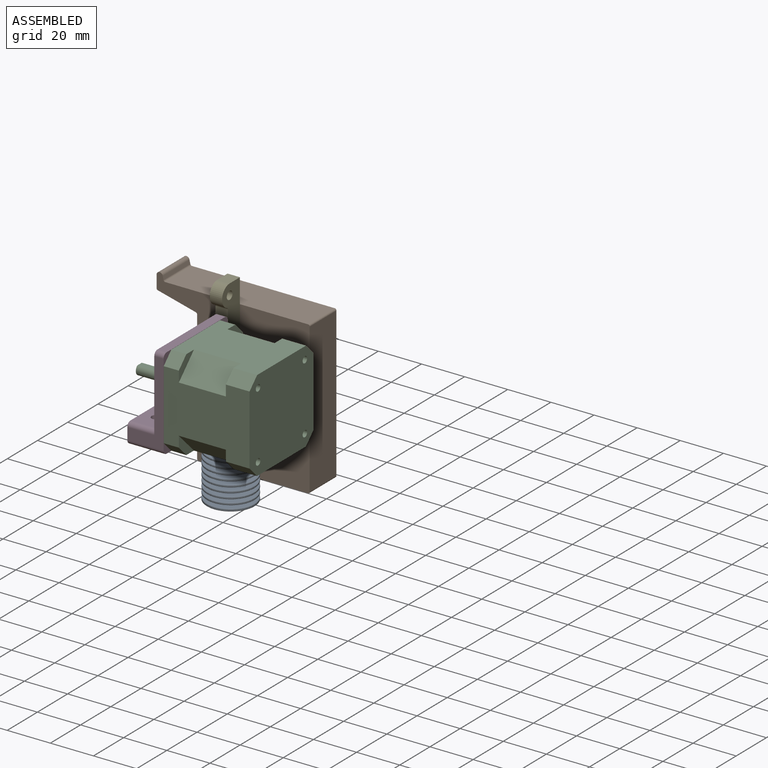
[diagram: assembled view]
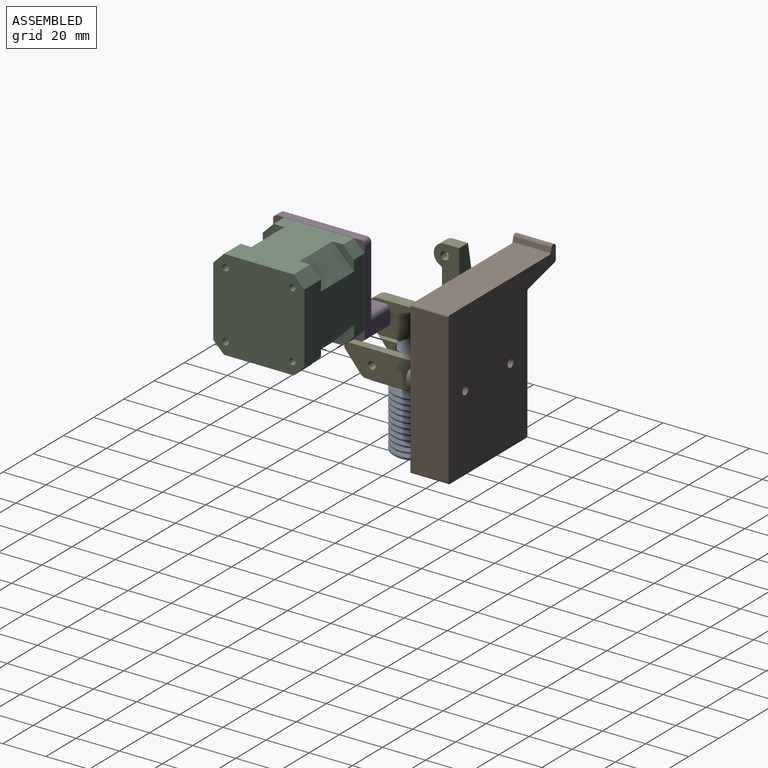
[diagram: assembled view, second angle]
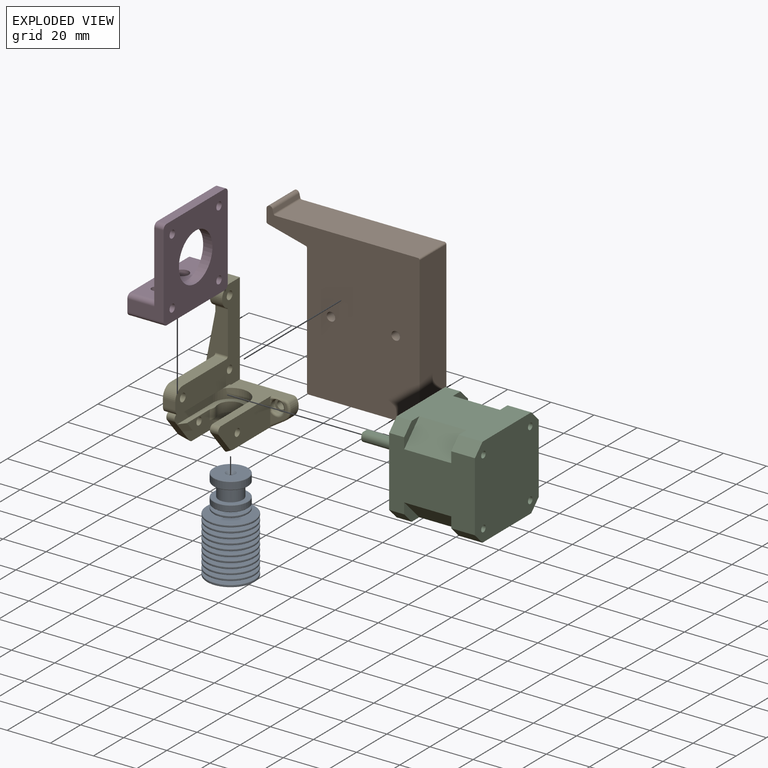
[diagram: exploded view]
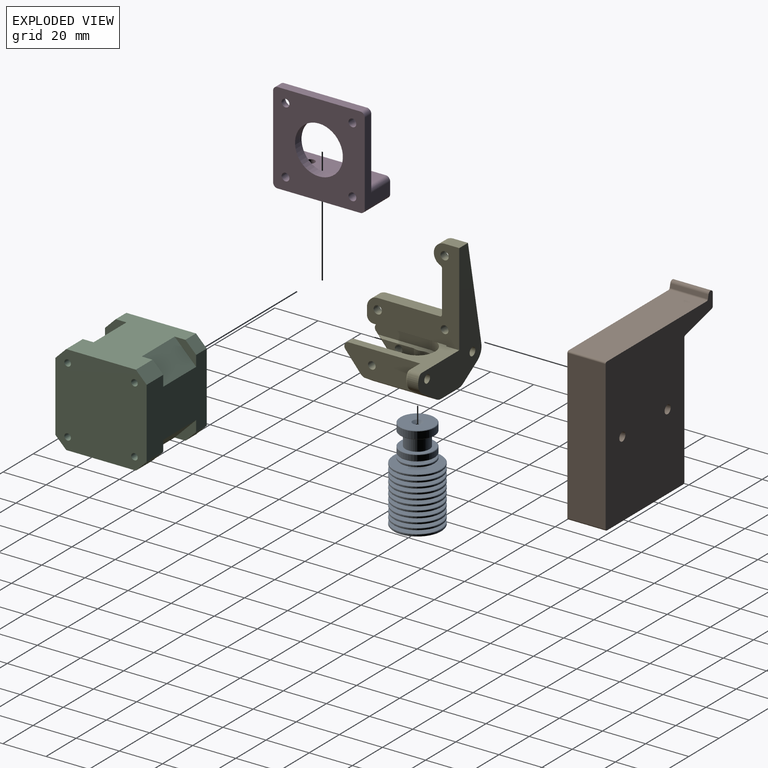
[diagram: exploded view, second angle]
ASSEMBLY  parts=5 mates=4
PART A: 87 faces, bbox 22.3x22.3x42.9 mm
  f0: plane 21.9x21.9mm, normal (0,0,-1), area 338.2mm2, adj f1,f60
  f1: cylinder r=3.5mm len=17.3mm, axis (0,0,1), area 380.4mm2, adj f0,f2
  f2: cone r=3.5mm half-angle=45deg, axis (0,0,-1), area 50mm2, adj f1,f3
  f3: cylinder r=1mm len=21.83mm, axis (0,0,1), area 137.1mm2, adj f2,f4
  f4: cone r=2.27mm half-angle=45deg, axis (0,0,1), area 18.5mm2, adj f3,f5
  f5: plane 15.6x15.6mm, normal (0,0,1), area 174.9mm2, adj f4,f85
  f6: cylinder r=8mm len=16mm, axis (0,0,1), area 165.9mm2, adj f85,f86
  f7: plane 15.6x15.6mm, normal (0,0,-1), area 94.4mm2, adj f8,f86
  f8: cylinder r=5.55mm len=11.1mm, axis (0,0,1), area 216.2mm2, adj f7,f9
  f9: plane 15.6x15.6mm, normal (0,0,1), area 94.4mm2, adj f8,f84
  f10: cylinder r=8mm len=16mm, axis (0,0,1), area 130.7mm2, adj f83,f84
  f11: plane 15.6x15.6mm, normal (0,0,-1), area 135.7mm2, adj f12,f83
  f12: cylinder r=4.2mm len=8.4mm, axis (0,0,1), area 37.1mm2, adj f11,f13
  f13: plane 15.6x15.6mm, normal (0,0,1), area 135.7mm2, adj f12,f81
  f14: cylinder r=8mm len=16mm, axis (0,0,1), area 30.2mm2, adj f81,f82
  f15: plane 15.6x15.6mm, normal (0,0,-1), area 135.7mm2, adj f16,f82
  f16: cylinder r=4.2mm len=8.4mm, axis (0,0,1), area 39.5mm2, adj f15,f17
  f17: plane 21.9x21.9mm, normal (0,0,1), area 321.3mm2, adj f16,f79
  f18: cylinder r=11.15mm len=22.3mm, axis (0,0,1), area 42mm2, adj f79,f80
  f19: plane 21.9x21.9mm, normal (0,0,-1), area 316.3mm2, adj f20,f80
  f20: cylinder r=4.38mm len=8.77mm, axis (0,0,1), area 41.2mm2, adj f19,f21
  f21: plane 21.9x21.9mm, normal (0,0,1), area 316.3mm2, adj f20,f77
  f22: cylinder r=11.15mm len=22.3mm, axis (0,0,1), area 42mm2, adj f77,f78
  f23: plane 21.9x21.9mm, normal (0,0,-1), area 311.1mm2, adj f24,f78
  f24: cylinder r=4.57mm len=9.14mm, axis (0,0,1), area 42.9mm2, adj f23,f25
  f25: plane 21.9x21.9mm, normal (0,0,1), area 311.1mm2, adj f24,f75
  f26: cylinder r=11.15mm len=22.3mm, axis (0,0,1), area 42mm2, adj f75,f76
  f27: plane 21.9x21.9mm, normal (0,0,-1), area 305.7mm2, adj f28,f76
  f28: cylinder r=4.75mm len=9.51mm, axis (0,0,1), area 44.7mm2, adj f27,f29
  f29: plane 21.9x21.9mm, normal (0,0,1), area 305.7mm2, adj f28,f73
  f30: cylinder r=11.15mm len=22.3mm, axis (0,0,1), area 42mm2, adj f73,f74
  f31: plane 21.9x21.9mm, normal (0,0,-1), area 300mm2, adj f32,f74
  f32: cylinder r=4.94mm len=9.88mm, axis (0,0,1), area 46.4mm2, adj f31,f33
  f33: plane 21.9x21.9mm, normal (0,0,1), area 300mm2, adj f32,f71
  f34: cylinder r=11.15mm len=22.3mm, axis (0,0,1), area 42mm2, adj f71,f72
  f35: plane 21.9x21.9mm, normal (0,0,-1), area 294.2mm2, adj f36,f72
  f36: cylinder r=5.12mm len=10.25mm, axis (0,0,1), area 48.1mm2, adj f35,f37
  f37: plane 21.9x21.9mm, normal (0,0,1), area 294.2mm2, adj f36,f69
  f38: cylinder r=11.15mm len=22.3mm, axis (0,0,1), area 42mm2, adj f69,f70
  f39: plane 21.9x21.9mm, normal (0,0,-1), area 288.1mm2, adj f40,f70
  f40: cylinder r=5.31mm len=10.62mm, axis (0,0,1), area 49.9mm2, adj f39,f41
  f41: plane 21.9x21.9mm, normal (0,0,1), area 288.1mm2, adj f40,f67
  f42: cylinder r=11.15mm len=22.3mm, axis (0,0,1), area 42mm2, adj f67,f68
  f43: plane 21.9x21.9mm, normal (0,0,-1), area 281.8mm2, adj f44,f68
  f44: cylinder r=5.5mm len=10.99mm, axis (0,0,1), area 51.6mm2, adj f43,f45
  f45: plane 21.9x21.9mm, normal (0,0,1), area 281.8mm2, adj f44,f65
  f46: cylinder r=11.15mm len=22.3mm, axis (0,0,1), area 42mm2, adj f65,f66
  f47: plane 21.9x21.9mm, normal (0,0,-1), area 275.3mm2, adj f48,f66
  f48: cylinder r=5.68mm len=11.36mm, axis (0,0,1), area 53.4mm2, adj f47,f49
  f49: plane 21.9x21.9mm, normal (0,0,1), area 275.3mm2, adj f48,f63
  f50: cylinder r=11.15mm len=22.3mm, axis (0,0,1), area 42mm2, adj f63,f64
  f51: plane 21.9x21.9mm, normal (0,0,-1), area 268.6mm2, adj f52,f64
  f52: cylinder r=5.87mm len=11.73mm, axis (0,0,1), area 55.1mm2, adj f51,f53
  f53: plane 21.9x21.9mm, normal (0,0,1), area 268.6mm2, adj f52,f61
  f54: cylinder r=11.15mm len=22.3mm, axis (0,0,1), area 42mm2, adj f61,f62
  f55: plane 21.9x21.9mm, normal (0,0,-1), area 261.7mm2, adj f56,f62
  f56: cylinder r=6.05mm len=12.1mm, axis (0,0,1), area 56.8mm2, adj f55,f57
  f57: plane 21.9x21.9mm, normal (0,0,1), area 261.7mm2, adj f56,f59
  f58: cylinder r=11.15mm len=22.3mm, axis (0,0,1), area 52.5mm2, adj f59,f60
  f59: cone r=10.95mm half-angle=45deg, axis (0,0,-1), area 19.6mm2, adj f57,f58
  f60: cone r=11.15mm half-angle=45deg, axis (0,0,1), area 19.6mm2, adj f0,f58
  f61: cone r=10.95mm half-angle=45deg, axis (0,0,-1), area 19.6mm2, adj f53,f54
  f62: cone r=11.15mm half-angle=45deg, axis (0,0,1), area 19.6mm2, adj f54,f55
  f63: cone r=10.95mm half-angle=45deg, axis (0,0,-1), area 19.6mm2, adj f49,f50
  f64: cone r=11.15mm half-angle=45deg, axis (0,0,1), area 19.6mm2, adj f50,f51
  f65: cone r=10.95mm half-angle=45deg, axis (0,0,-1), area 19.6mm2, adj f45,f46
  f66: cone r=11.15mm half-angle=45deg, axis (0,0,1), area 19.6mm2, adj f46,f47
  f67: cone r=10.95mm half-angle=45deg, axis (0,0,-1), area 19.6mm2, adj f41,f42
  f68: cone r=11.15mm half-angle=45deg, axis (0,0,1), area 19.6mm2, adj f42,f43
  f69: cone r=10.95mm half-angle=45deg, axis (0,0,-1), area 19.6mm2, adj f37,f38
  f70: cone r=11.15mm half-angle=45deg, axis (0,0,1), area 19.6mm2, adj f38,f39
  f71: cone r=10.95mm half-angle=45deg, axis (0,0,-1), area 19.6mm2, adj f33,f34
  f72: cone r=11.15mm half-angle=45deg, axis (0,0,1), area 19.6mm2, adj f34,f35
  f73: cone r=10.95mm half-angle=45deg, axis (0,0,-1), area 19.6mm2, adj f29,f30
  f74: cone r=11.15mm half-angle=45deg, axis (0,0,1), area 19.6mm2, adj f30,f31
  f75: cone r=10.95mm half-angle=45deg, axis (0,0,-1), area 19.6mm2, adj f25,f26
  f76: cone r=11.15mm half-angle=45deg, axis (0,0,1), area 19.6mm2, adj f26,f27
  f77: cone r=10.95mm half-angle=45deg, axis (0,0,-1), area 19.6mm2, adj f21,f22
  f78: cone r=11.15mm half-angle=45deg, axis (0,0,1), area 19.6mm2, adj f22,f23
  f79: cone r=10.95mm half-angle=45deg, axis (0,0,-1), area 19.6mm2, adj f17,f18
  f80: cone r=11.15mm half-angle=45deg, axis (0,0,1), area 19.6mm2, adj f18,f19
  f81: cone r=7.8mm half-angle=45deg, axis (0,0,-1), area 14mm2, adj f13,f14
  f82: cone r=8mm half-angle=45deg, axis (0,0,1), area 14mm2, adj f14,f15
  f83: cone r=8mm half-angle=45deg, axis (0,0,1), area 14mm2, adj f10,f11
  f84: cone r=7.8mm half-angle=45deg, axis (0,0,-1), area 14mm2, adj f9,f10
  f85: cone r=7.8mm half-angle=45deg, axis (0,0,-1), area 14mm2, adj f5,f6
  f86: cone r=8mm half-angle=45deg, axis (0,0,1), area 14mm2, adj f6,f7
PART B: 19 faces, bbox 71x17.7x74.3 mm
  f0: plane 69.2x17.7mm, normal (1,0,0), area 1224.8mm2, adj f9,f10,f13,f18
  f1: plane 66.16x17.7mm, normal (0,0,1), area 1171.1mm2, adj f9,f10,f13,f14
  f2: plane 17.7x1.71mm, normal (0.97,0,0.22), area 31.1mm2, adj f9,f10,f12,f14
  f3: plane 17.7x5.58mm, normal (-1,0,0), area 98.7mm2, adj f9,f10,f11,f15
  f4: plane 17.7x17.6mm, normal (-0.25,0,-0.97), area 321.4mm2, adj f9,f10,f15,f16
  f5: plane 60.38x17.7mm, normal (-1,0,0), area 1068.7mm2, adj f9,f10,f16,f17
  f6: cylinder r=2mm len=17.7mm, axis (0,-1,0), area 222.4mm2, adj f9,f10
  f7: plane 50.6x17.7mm, normal (0,0,-1), area 895.6mm2, adj f9,f10,f17,f18
  f8: cylinder r=2mm len=17.7mm, axis (0,-1,0), area 222.4mm2, adj f9,f10
  f9: plane 74.3x71mm, normal (0,1,0), area 3804.1mm2, adj f0,f1,f2,f3,f4,f5,f6,f7
  f10: plane 74.3x71mm, normal (0,-1,0), area 3804.1mm2, adj f0,f1,f2,f3,f4,f5,f6,f7
  f11: cylinder r=1.5mm len=17.7mm, axis (0,-1,0), area 40.9mm2, adj f3,f9,f10,f12
  f12: cylinder r=1.5mm len=17.7mm, axis (0,-1,0), area 34.9mm2, adj f2,f9,f10,f11
  f13: cylinder r=0.8mm len=17.7mm, axis (0,-1,0), area 22.2mm2, adj f0,f1,f9,f10
  f14: cylinder r=0.8mm len=17.7mm, axis (0,-1,0), area 19.1mm2, adj f1,f2,f9,f10
  f15: cylinder r=0.8mm len=17.7mm, axis (0,-1,0), area 18.7mm2, adj f3,f4,f9,f10
  f16: cylinder r=0.8mm len=17.7mm, axis (0,1,0), area 18.7mm2, adj f4,f5,f9,f10
  f17: cylinder r=0.8mm len=17.7mm, axis (0,-1,0), area 22.2mm2, adj f5,f7,f9,f10
  f18: cylinder r=0.8mm len=17.7mm, axis (0,1,0), area 22.2mm2, adj f0,f7,f9,f10
PART C: 48 faces, bbox 42.3x65.8x42.3 mm
  f0: plane 10x10mm, normal (0,-1,0), area 37.5mm2, adj f4,f5,f10,f21
  f1: plane 10x10mm, normal (0,-1,0), area 37.5mm2, adj f5,f6,f9,f22
  f2: plane 10x10mm, normal (0,-1,0), area 37.5mm2, adj f3,f6,f12,f23
  f3: plane 39.8x32.3mm, normal (1,0,0), area 1067.5mm2, adj f2,f7,f8,f11,f12,f23,f24,f26
  f4: plane 39.8x32.3mm, normal (0,0,-1), area 1067.5mm2, adj f0,f7,f8,f10,f11,f21,f24,f25
  f5: plane 39.8x32.3mm, normal (-1,0,0), area 1067.5mm2, adj f0,f1,f7,f9,f10,f21,f22,f25
  f6: plane 39.8x32.3mm, normal (0,0,1), area 1067.5mm2, adj f1,f2,f7,f9,f12,f22,f23,f27
  f7: plane 42.3x42.3mm, normal (0,1,0), area 1711mm2, adj f3,f4,f5,f6,f9,f10,f11,f12
  f8: plane 10x10mm, normal (0,-1,0), area 37.5mm2, adj f3,f4,f11,f24
  f9: plane 11x5mm, normal (-0.71,0,0.71), area 77.8mm2, adj f1,f5,f6,f7
  f10: plane 11x5mm, normal (-0.71,0,-0.71), area 77.8mm2, adj f0,f4,f5,f7
  f11: plane 11x5mm, normal (0.71,0,-0.71), area 77.8mm2, adj f3,f4,f7,f8
  f12: plane 11x5mm, normal (0.71,0,0.71), area 77.8mm2, adj f2,f3,f6,f7
  f13: cylinder r=1.5mm len=4.5mm, axis (0,1,0), area 42.4mm2, adj f7,f14
  f14: plane 3x3mm, normal (0,1,0), area 7.1mm2, adj f13
  f15: cylinder r=1.5mm len=4.5mm, axis (0,1,0), area 42.4mm2, adj f7,f16
  f16: plane 3x3mm, normal (0,1,0), area 7.1mm2, adj f15
  f17: cylinder r=1.5mm len=4.5mm, axis (0,1,0), area 42.4mm2, adj f7,f18
  f18: plane 3x3mm, normal (0,1,0), area 7.1mm2, adj f17
  f19: cylinder r=1.5mm len=4.5mm, axis (0,1,0), area 42.4mm2, adj f7,f20
  f20: plane 3x3mm, normal (0,1,0), area 7.1mm2, adj f19
  f21: plane 21.8x10mm, normal (-0.71,0,-0.71), area 308.3mm2, adj f0,f4,f5,f25
  f22: plane 21.8x10mm, normal (-0.71,0,0.71), area 308.3mm2, adj f1,f5,f6,f28
  f23: plane 21.8x10mm, normal (0.71,0,0.71), area 308.3mm2, adj f2,f3,f6,f27
  f24: plane 21.8x10mm, normal (0.71,0,-0.71), area 308.3mm2, adj f3,f4,f8,f26
  f25: plane 10x10mm, normal (0,1,0), area 37.5mm2, adj f4,f5,f21,f30
  f26: plane 10x10mm, normal (0,1,0), area 37.5mm2, adj f3,f4,f24,f31
  f27: plane 10x10mm, normal (0,1,0), area 37.5mm2, adj f3,f6,f23,f32
  f28: plane 10x10mm, normal (0,1,0), area 37.5mm2, adj f5,f6,f22,f33
  f29: plane 42.3x42.3mm, normal (0,-1,0), area 1330.9mm2, adj f3,f4,f5,f6,f30,f31,f32,f33
  f30: plane 7x5mm, normal (-0.71,0,-0.71), area 49.5mm2, adj f4,f5,f25,f29
  f31: plane 7x5mm, normal (0.71,0,-0.71), area 49.5mm2, adj f3,f4,f26,f29
  f32: plane 7x5mm, normal (0.71,0,0.71), area 49.5mm2, adj f3,f6,f27,f29
  f33: plane 7x5mm, normal (-0.71,0,0.71), area 49.5mm2, adj f5,f6,f28,f29
  f34: cylinder r=11mm len=22mm, axis (0,1,0), area 138.2mm2, adj f29,f35
  f35: plane 22x22mm, normal (0,-1,0), area 360.5mm2, adj f34,f44
  f36: cylinder r=1.5mm len=4.5mm, axis (0,-1,0), area 42.4mm2, adj f29,f37
  f37: plane 3x3mm, normal (0,-1,0), area 7.1mm2, adj f36
  f38: cylinder r=1.5mm len=4.5mm, axis (0,-1,0), area 42.4mm2, adj f29,f39
  f39: plane 3x3mm, normal (0,-1,0), area 7.1mm2, adj f38
  f40: cylinder r=1.5mm len=4.5mm, axis (0,-1,0), area 42.4mm2, adj f29,f41
  f41: plane 3x3mm, normal (0,-1,0), area 7.1mm2, adj f40
  f42: cylinder r=1.5mm len=4.5mm, axis (0,-1,0), area 42.4mm2, adj f29,f43
  f43: plane 3x3mm, normal (0,-1,0), area 7.1mm2, adj f42
  f44: cylinder r=2.5mm len=24mm, axis (0,1,0), area 328.7mm2, adj f35,f45,f46,f47
  f45: plane 5x4.5mm, normal (0,-1,0), area 18.6mm2, adj f44,f46
  f46: plane 15x3mm, normal (0,0,1), area 45mm2, adj f44,f45,f47
  f47: plane 3x0.5mm, normal (0,-1,0), area 1mm2, adj f44,f46
PART D: 25 faces, bbox 16.8x42.5x42.5 mm
  f0: plane 38.5x16.8mm, normal (0,0,-1), area 574.3mm2, adj f8,f13,f14,f15,f22,f24
  f1: plane 42.5x35.1mm, normal (-1,0,0), area 977.3mm2, adj f3,f4,f5,f6,f7,f9,f10,f16
  f2: cylinder r=1.8mm len=3.6mm, axis (1,0,0), area 19.2mm2, adj f14,f19
  f3: plane 38.5x16.8mm, normal (0,1,0), area 233mm2, adj f1,f4,f13,f14,f15,f16
  f4: cylinder r=2mm len=4.3mm, axis (1,0,0), area 13.5mm2, adj f1,f3,f5,f14
  f5: plane 38.5x4.3mm, normal (0,0,1), area 165.6mm2, adj f1,f4,f6,f14
  f6: cylinder r=2mm len=4.3mm, axis (1,0,0), area 13.5mm2, adj f1,f5,f7,f14
  f7: plane 38.5x16.8mm, normal (0,-1,0), area 233mm2, adj f1,f6,f8,f14,f15,f18
  f8: cylinder r=2mm len=16.8mm, axis (1,0,0), area 52.8mm2, adj f0,f7,f14,f15
  f9: cylinder r=11.1mm len=22.2mm, axis (1,0,0), area 299.9mm2, adj f1,f14
  f10: cylinder r=1.8mm len=4.3mm, axis (1,0,0), area 48.6mm2, adj f1,f14
  f11: cylinder r=1.8mm len=16.8mm, axis (1,0,0), area 190mm2, adj f14,f15
  f12: cylinder r=1.8mm len=16.8mm, axis (1,0,0), area 190mm2, adj f14,f15
  f13: cylinder r=2mm len=16.8mm, axis (1,0,0), area 52.8mm2, adj f0,f3,f14,f15
  f14: plane 42.5x42.5mm, normal (1,0,0), area 1375mm2, adj f0,f2,f3,f4,f5,f6,f7,f8
  f15: plane 42.5x9.4mm, normal (-1,0,0), area 375.7mm2, adj f0,f3,f7,f8,f11,f12,f13,f16
  f16: cylinder r=2mm len=12.5mm, axis (1,0,0), area 39.3mm2, adj f1,f3,f15,f17
  f17: plane 38.5x12.5mm, normal (0,0,1), area 440.4mm2, adj f1,f15,f16,f18,f21,f22
  f18: cylinder r=2mm len=12.5mm, axis (1,0,0), area 39.3mm2, adj f1,f7,f15,f17
  f19: plane 6.4x6.4mm, normal (-1,0,0), area 22mm2, adj f2,f20
  f20: cylinder r=3.2mm len=6.4mm, axis (1,0,0), area 52.3mm2, adj f1,f19
  f21: cylinder r=2mm len=6.6mm, axis (0,0,-1), area 82.9mm2, adj f17,f23
  f22: cylinder r=3mm len=9.4mm, axis (0,0,-1), area 177.2mm2, adj f0,f17
  f23: plane 7.5x7.5mm, normal (0,0,-1), area 31.6mm2, adj f21,f24
  f24: cylinder r=3.75mm len=7.5mm, axis (0,0,-1), area 66mm2, adj f0,f23
PART E: 90 faces, bbox 43.6x43.4x59.3 mm
  f0: plane 42.8x42.8mm, normal (1,0,0), area 722.1mm2, adj f7,f8,f12,f13,f14,f15,f16,f17
  f1: plane 0.25x0.25mm, normal (0,-1,0), area 0mm2, adj f45,f72,f74
  f2: plane 20.39x6.38mm, normal (-1,0,0), area 108.9mm2, adj f3,f5,f26,f55,f61,f62
  f3: plane 10.94x9.18mm, normal (0,-0.77,-0.64), area 48.3mm2, adj f2,f44,f45,f57,f61,f65
  f4: plane 20.39x6.38mm, normal (1,0,0), area 108.9mm2, adj f5,f24,f48,f55,f63,f64
  f5: cylinder r=8.2mm len=16.4mm, axis (0,0,-1), area 170.2mm2, adj f2,f4,f24,f25,f26,f55
  f6: plane 10.72x8mm, normal (0,-1,0), area 20.9mm2, adj f45,f68,f71,f72,f73,f74
  f7: plane 5.75x3.3mm, normal (0,-1,0), area 19mm2, adj f0,f13,f19,f30,f60
  f8: plane 34.88x14.09mm, normal (0,0,-1), area 345.4mm2, adj f0,f11,f21,f30,f60,f77
  f9: plane 36.56x7.75mm, normal (0,0,1), area 126mm2, adj f10,f19,f30,f81,f83
  f10: cylinder r=3mm len=7.19mm, axis (1,0,0), area 33.5mm2, adj f9,f19,f20,f30
  f11: plane 45.55x8.89mm, normal (-0.98,0,0.19), area 187.4mm2, adj f8,f12,f14,f20,f22,f30,f77
  f12: plane 6.8x5.75mm, normal (0,0,1), area 39.1mm2, adj f0,f11,f14,f15,f19
  f13: cylinder r=5mm len=5.75mm, axis (-1,0,0), area 45.2mm2, adj f0,f7,f17,f19
  f14: plane 58.6x42mm, normal (0,1,0), area 942mm2, adj f0,f11,f12,f22,f23,f24,f25,f26
  f15: cylinder r=5mm len=9.65mm, axis (-1,0,0), area 79.5mm2, adj f0,f12,f19,f87
  f16: plane 19.42x5.75mm, normal (0,-1,0), area 111.7mm2, adj f0,f19,f87,f88
  f17: plane 28.8x5.75mm, normal (0,0,1), area 165.6mm2, adj f0,f13,f19,f88
  f18: cylinder r=1.8mm len=4.75mm, axis (-1,0,0), area 53.7mm2, adj f0,f89
  f19: plane 39x39mm, normal (-1,0,0), area 344.6mm2, adj f7,f9,f10,f12,f13,f15,f16,f17
  f20: plane 36.56x7.59mm, normal (0,-1,0), area 126.5mm2, adj f10,f11,f19,f84,f86
  f21: plane 13.75x12.22mm, normal (0,-1,0), area 31mm2, adj f0,f8,f29,f46,f75,f76,f77,f79
  f22: cylinder r=6mm len=6.22mm, axis (0,1,0), area 36mm2, adj f11,f14,f23,f76
  f23: plane 30.78x9.32mm, normal (-0.53,0,-0.84), area 147.1mm2, adj f14,f22,f24,f46,f63,f75
  f24: cylinder r=6mm len=29.13mm, axis (0,1,0), area 51.3mm2, adj f4,f5,f14,f23,f25,f64
  f25: plane 11.36x9.09mm, normal (0,0,-1), area 85.3mm2, adj f5,f14,f24,f26
  f26: cylinder r=6mm len=29.13mm, axis (0,1,0), area 51.3mm2, adj f2,f5,f14,f25,f27,f62
  f27: plane 30.78x9.32mm, normal (0.53,0,-0.84), area 147.1mm2, adj f14,f26,f28,f45,f61,f68
  f28: cylinder r=6mm len=7.92mm, axis (0,1,0), area 45mm2, adj f14,f27,f67,f71
  f29: plane 38.51x30.52mm, normal (0,0,1), area 431.2mm2, adj f0,f14,f21,f43,f44,f45,f46,f47
  f30: bspline ~39x8.25mm, area 126.6mm2, adj f7,f8,f9,f10,f11,f60
  f31: cylinder r=1.9mm len=3.8mm, axis (-1,0,0), area 32.8mm2, adj f0,f32
  f32: plane 6x6mm, normal (-1,0,0), area 16.9mm2, adj f31,f33
  f33: cylinder r=3mm len=6mm, axis (-1,0,0), area 39.9mm2, adj f32,f84,f85,f86
  f34: cylinder r=1.9mm len=3.8mm, axis (-1,0,0), area 32.8mm2, adj f0,f35
  f35: plane 6x6mm, normal (-1,0,0), area 16.9mm2, adj f34,f36
  f36: cylinder r=3mm len=6mm, axis (-1,0,0), area 39.9mm2, adj f35,f81,f82,f83
  f37: cylinder r=1.9mm len=3.8mm, axis (0,-1,0), area 35.8mm2, adj f14,f38
  f38: plane 6x6mm, normal (0,-1,0), area 16.9mm2, adj f37,f39
  f39: cylinder r=3mm len=6mm, axis (0,-1,0), area 39.9mm2, adj f38,f78,f79,f80
  f40: cylinder r=1.9mm len=3.8mm, axis (0,-1,0), area 35.8mm2, adj f14,f41
  f41: plane 6x6mm, normal (0,-1,0), area 16.9mm2, adj f40,f42
  f42: cylinder r=3mm len=6mm, axis (0,-1,0), area 39.9mm2, adj f41,f69,f70,f72
  f43: cylinder r=8.2mm len=16.4mm, axis (0,0,-1), area 117.2mm2, adj f29,f44,f47,f54
  f44: plane 25.51x4.55mm, normal (-1,0,0), area 113.8mm2, adj f3,f29,f43,f54,f65
  f45: plane 36.08x13.46mm, normal (1,0,0), area 391.5mm2, adj f1,f3,f6,f27,f29,f58,f61,f65
  f46: plane 36.08x13.46mm, normal (-1,0,0), area 391.3mm2, adj f21,f23,f29,f48,f59,f63,f66,f75
  f47: plane 25.51x4.55mm, normal (1,0,0), area 113.8mm2, adj f29,f43,f48,f54,f66
  f48: plane 10.94x9.18mm, normal (0,-0.77,-0.64), area 48.3mm2, adj f4,f46,f47,f56,f63,f66
  f49: plane 15.08x4.5mm, normal (1,0,0), area 49.8mm2, adj f50,f54,f55,f56,f59
  f50: cylinder r=5.75mm len=4.5mm, axis (0,0,-1), area 18.5mm2, adj f49,f51,f54,f55
  f51: cylinder r=5.75mm len=11.5mm, axis (0,0,-1), area 96.6mm2, adj f50,f52,f54,f55
  f52: cylinder r=5.75mm len=4.5mm, axis (0,0,-1), area 18.5mm2, adj f51,f53,f54,f55
  f53: plane 15.08x4.5mm, normal (-1,0,0), area 49.8mm2, adj f52,f54,f55,f57,f58
  f54: plane 32.18x16.4mm, normal (0,0,1), area 166.6mm2, adj f43,f44,f47,f49,f50,f51,f52,f53
  f55: plane 28.41x16.4mm, normal (0,0,-1), area 148.1mm2, adj f2,f4,f5,f49,f50,f51,f52,f53
  f56: plane 6.97x4.5mm, normal (0.71,-0.54,-0.45), area 20.4mm2, adj f48,f49,f54,f55
  f57: plane 6.97x4.5mm, normal (-0.71,-0.54,-0.45), area 20.4mm2, adj f3,f53,f54,f55
  f58: cylinder r=1.75mm len=6.25mm, axis (-1,0,0), area 68.7mm2, adj f45,f53
  f59: cylinder r=1.75mm len=6.25mm, axis (-1,0,0), area 68.7mm2, adj f46,f49
  f60: cylinder r=3mm len=6.42mm, axis (-1,0,0), area 28.7mm2, adj f0,f7,f8,f30
  f61: cylinder r=2mm len=5.25mm, axis (-0.77,0.41,-0.49), area 9.3mm2, adj f2,f3,f27,f45,f62
  f62: bspline ~1.38x1.23mm, area 0.5mm2, adj f2,f26,f61
  f63: cylinder r=2mm len=5.25mm, axis (0.77,0.41,-0.49), area 9.3mm2, adj f4,f23,f46,f48,f64
  f64: bspline ~1.38x1.23mm, area 0.5mm2, adj f4,f24,f63
  f65: cylinder r=2mm len=3.8mm, axis (-1,0,0), area 17.2mm2, adj f3,f29,f44,f45
  f66: cylinder r=2mm len=3.8mm, axis (-1,0,0), area 17.2mm2, adj f29,f46,f47,f48
  f67: cylinder r=2mm len=5mm, axis (0,1,0), area 10.8mm2, adj f14,f28,f29,f73
  f68: cylinder r=1mm len=6.74mm, axis (-0.84,0,-0.53), area 11mm2, adj f6,f27,f45,f71
  f69: bspline ~2.76x1.07mm, area 1.1mm2, adj f42,f45,f72
  f70: bspline ~2.76x1.07mm, area 1.1mm2, adj f42,f45,f72
  f71: torus R=5mm, axis (0,-1,0), area 13.3mm2, adj f6,f28,f68,f73
  f72: torus R=4mm, axis (0,-1,0), area 23.3mm2, adj f1,f6,f42,f69,f70,f74
  f73: torus R=1mm, axis (0,-1,0), area 2.8mm2, adj f6,f67,f71,f74
  f74: cylinder r=1mm len=6.52mm, axis (1,0,0), area 8.1mm2, adj f1,f6,f29,f45,f72,f73
  f75: cylinder r=1mm len=6.74mm, axis (-0.84,0,0.53), area 11mm2, adj f21,f23,f46,f76
  f76: torus R=5mm, axis (0,-1,0), area 10.6mm2, adj f21,f22,f75,f77
  f77: cylinder r=1mm len=3.63mm, axis (0.19,0,0.98), area 5.4mm2, adj f8,f11,f21,f76
  f78: bspline ~2.76x1.07mm, area 1.1mm2, adj f39,f46,f79
  f79: torus R=4mm, axis (0,-1,0), area 25.6mm2, adj f21,f39,f78,f80
  f80: bspline ~2.76x1.07mm, area 1.1mm2, adj f39,f46,f79
  f81: bspline ~2.76x1.07mm, area 1.1mm2, adj f9,f36,f82
  f82: torus R=4mm, axis (1,0,0), area 25.6mm2, adj f19,f36,f81,f83
  f83: bspline ~2.76x1.07mm, area 1.1mm2, adj f9,f36,f82
  f84: bspline ~2.76x1.07mm, area 1.1mm2, adj f20,f33,f85
  f85: torus R=4mm, axis (1,0,0), area 25.6mm2, adj f19,f33,f84,f86
  f86: bspline ~2.76x1.07mm, area 1.1mm2, adj f20,f33,f85
  f87: cylinder r=1mm len=5.75mm, axis (-1,0,0), area 6.9mm2, adj f0,f15,f16,f19
  f88: cylinder r=1mm len=5.75mm, axis (-1,0,0), area 9mm2, adj f0,f16,f17,f19
  f89: torus R=2.8mm, axis (1,0,0), area 21.4mm2, adj f18,f19
PLACE A t=(-47.59,-1.11,-16.1)mm
PLACE B t=(-47.59,13.89,22.9)mm fixed
PLACE C rot(axis=(0,0,-1),90deg) t=(-37.04,-39.41,49.1)mm
PLACE D t=(-37.04,-39.41,49.1)mm
PLACE E t=(-47.59,13.89,22.9)mm
MATE fastened E.f13 <-> D.f11  axis (1,0,0) through (-53.84,-23.91,33.6)mm
MATE fastened A.f1 <-> E.f51  axis (0,0,1) through (-47.59,-1.11,20)mm
MATE fastened D.f11 <-> C.f17  axis (1,0,0) through (-37.04,-23.91,33.6)mm
MATE fastened B.f6 <-> E.f37  axis (0,-1,0) through (-62.59,13.89,22.9)mm
